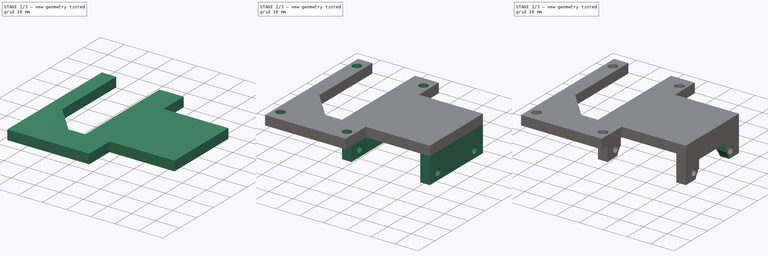
[diagram: build sequence overview — one tinted view per stage of 3, left to right]
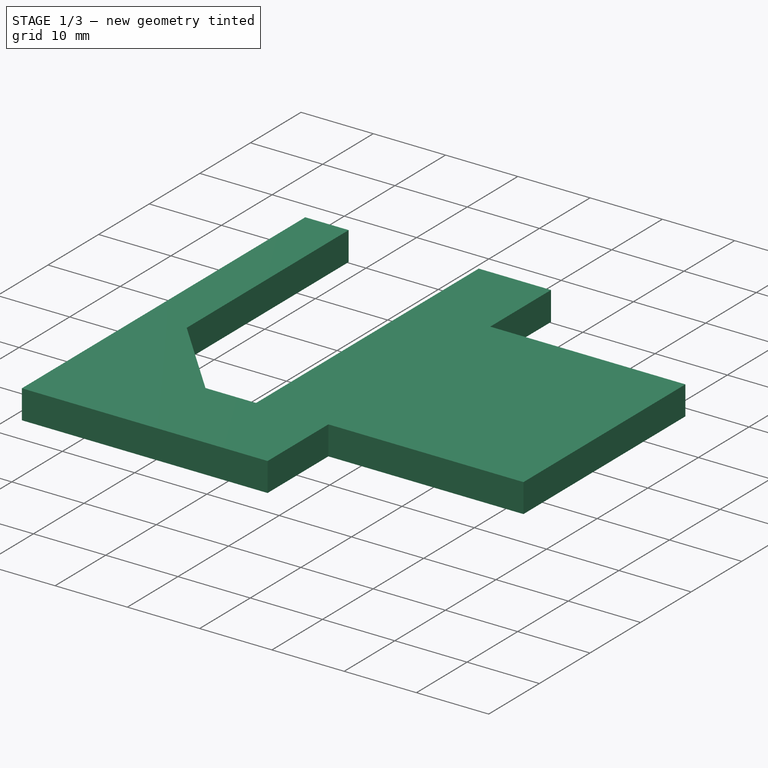
[diagram: stage 1 of 3 — iso view after this stage's code; geometry added in this stage tinted green]
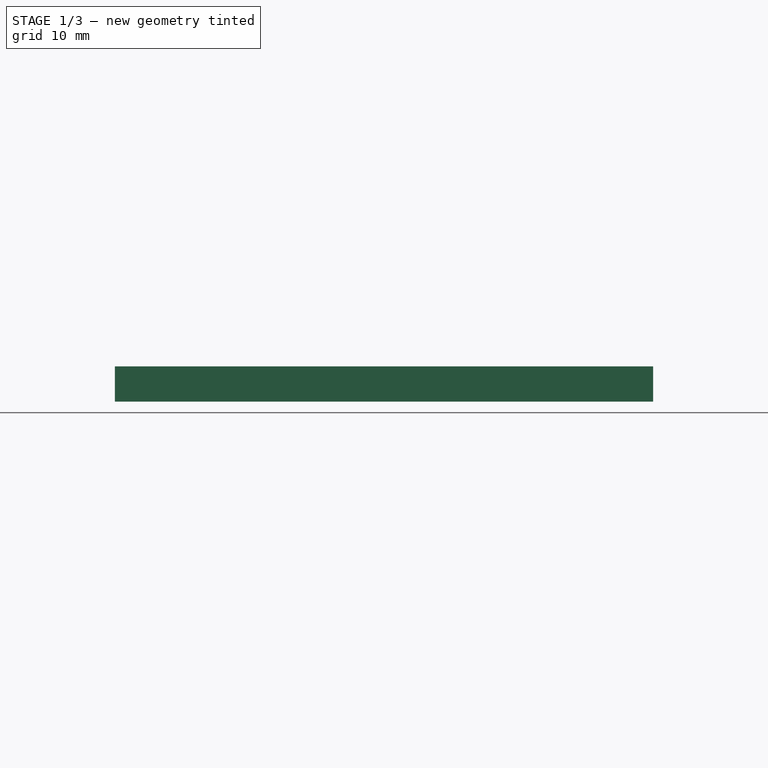
[diagram: stage 1 of 3 — front view after this stage's code; geometry added in this stage tinted green]
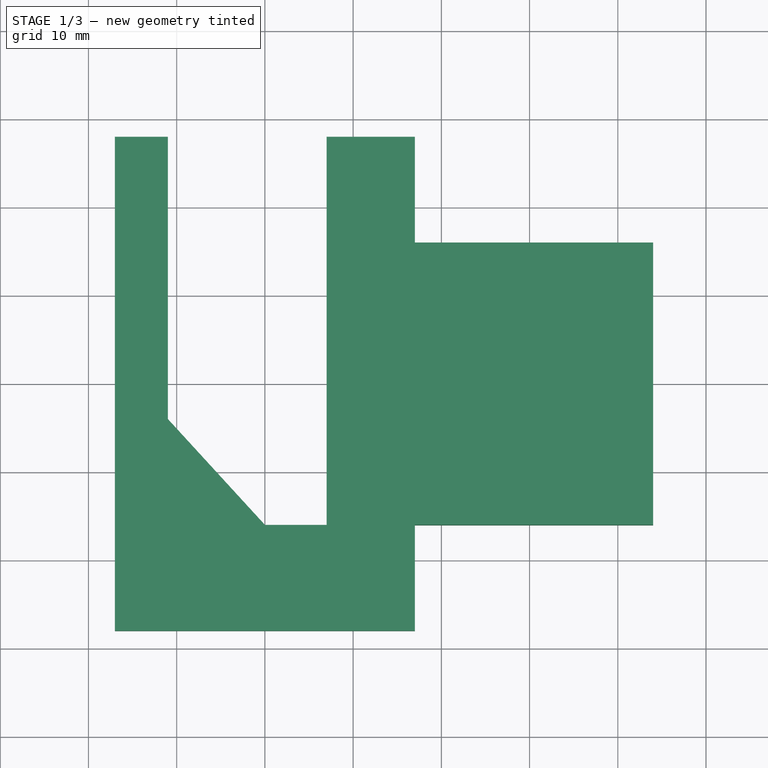
[diagram: stage 1 of 3 — top view after this stage's code; geometry added in this stage tinted green]
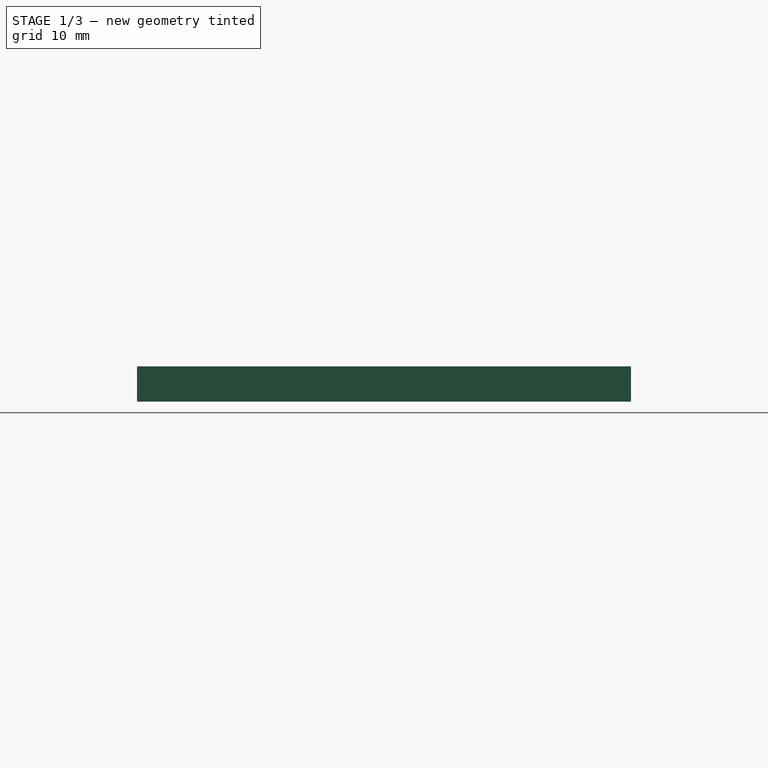
[diagram: stage 1 of 3 — right view after this stage's code; geometry added in this stage tinted green]
FCSTD DOCUMENT  (FreeCAD 0.21R33694 (Git))
Label: _mod_XL-430holderThighFront
License: All rights reserved
LicenseURL: http://en.wikipedia.org/wiki/All_rights_reserved
objects: Sketcher::SketchObject×6, PartDesign::Pocket×4, PartDesign::Pad×2, PartDesign::Chamfer×1, PartDesign::Body×1
note: 21 computed .brp shape members not serialized (recipe doc carries the construction recipe); baked Part::Feature solids carry a one-line shape summary decoded from their .brp

FEATURE [Sketcher::SketchObject] Sketch
  FullyConstrained = true
  MapMode = 5
  Support = -> [XY_Plane]
  sketch-geometry (8):
    g0: LineSegment StartX=-17 StartY=28 StartZ=0 EndX=17 EndY=28 EndZ=0
    g1: LineSegment StartX=17 StartY=28 StartZ=0 EndX=17 EndY=16 EndZ=0
    g2: LineSegment StartX=17 StartY=-28 StartZ=0 EndX=-17 EndY=-28 EndZ=0
    g3: LineSegment StartX=-17 StartY=-28 StartZ=0 EndX=-17 EndY=28 EndZ=0
    g4: LineSegment StartX=17 StartY=16 StartZ=0 EndX=44 EndY=16 EndZ=0
    g5: LineSegment StartX=44 StartY=16 StartZ=0 EndX=44 EndY=-16 EndZ=0
    g6: LineSegment StartX=44 StartY=-16 StartZ=0 EndX=17 EndY=-16 EndZ=0
    g7: LineSegment StartX=17 StartY=-16 StartZ=0 EndX=17 EndY=-28 EndZ=0
  constraints (24):
    c: Coincident(g0,g1)
    c: Coincident(g7,g2)
    c: Coincident(g2,g3)
    c: Coincident(g3,g0)
    c: Horizontal(g0)
    c: Horizontal(g2)
    c: Vertical(g1)
    c: Vertical(g3)
    c: DistanceY(g-1,g0) = 28
    c: DistanceY(g2,g-1) = 28
    c: DistanceX(g0,g-1) = 17
    c: DistanceX(g-1,g0) = 17
    c: Horizontal(g4)
    c: Coincident(g5,g4)
    c: Vertical(g5)
    c: Coincident(g6,g5)
    c: Horizontal(g6)
    c: DistanceY(g-1,g4) = 16
    c: DistanceY(g6,g-1) = 16
    c: DistanceX(g4,g4) = 27
    c: Coincident(g1,g4)
    c: Coincident(g7,g6)
    c: DistanceX(g6,g1) = 0
    c: DistanceX(g2,g1) = 0
FEATURE [PartDesign::Pad] Pad
  Direction = (0,0,1)
  Length = 4
  Length2 = 10
  Profile = -> Sketch
  ReferenceAxis = -> Sketch [N_Axis]
  Type = 0
FEATURE [Sketcher::SketchObject] Sketch003
  FullyConstrained = true
  MapMode = 5
  Placement = pos=(0,0,4) rot=(0,0,1;0rad)
  sketch-geometry (5):
    g0: LineSegment StartX=-11 StartY=28 StartZ=0 EndX=-11 EndY=-4 EndZ=0
    g1: LineSegment StartX=-11 StartY=-4 StartZ=0 EndX=-7e-16 EndY=-16 EndZ=0
    g2: LineSegment StartX=-7e-16 StartY=-16 StartZ=0 EndX=7 EndY=-16 EndZ=0
    g3: LineSegment StartX=7 StartY=-16 StartZ=0 EndX=7 EndY=28 EndZ=0
    g4: LineSegment StartX=-11 StartY=28 StartZ=0 EndX=7 EndY=28 EndZ=0
  constraints (15):
    c: Vertical(g0)
    c: Coincident(g1,g0)
    c: PointOnObject(g1,g-2)
    c: Coincident(g2,g1)
    c: Horizontal(g2)
    c: Coincident(g3,g2)
    c: Vertical(g3)
    c: Coincident(g4,g0)
    c: Coincident(g4,g3)
    c: Horizontal(g4)
    c: DistanceX(g0,g-1) = 11
    c: DistanceX(g-1,g3) = 7
    c: DistanceY(g-1,g0) = 28
    c: DistanceY(g1,g-1) = 16
    c: DistanceY(g0,g-1) = 4
FEATURE [PartDesign::Pocket] Pocket
  BaseFeature = -> Pad
  Direction = (0,0,-1)
  Length = 5
  Length2 = 5
  Profile = -> Sketch003
  ReferenceAxis = -> Sketch003 [N_Axis]
  Type = 0
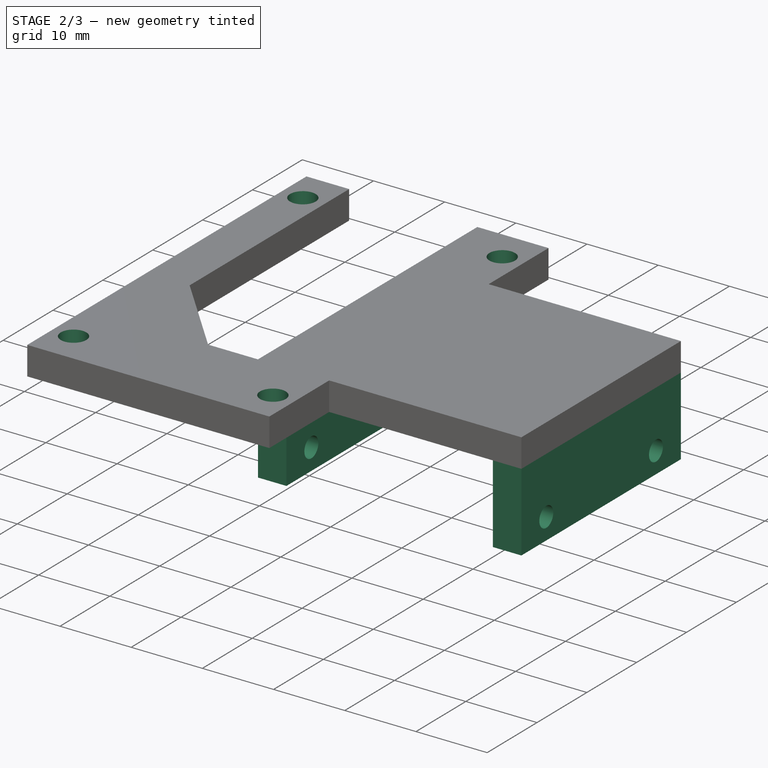
[diagram: stage 2 of 3 — iso view after this stage's code; geometry added in this stage tinted green]
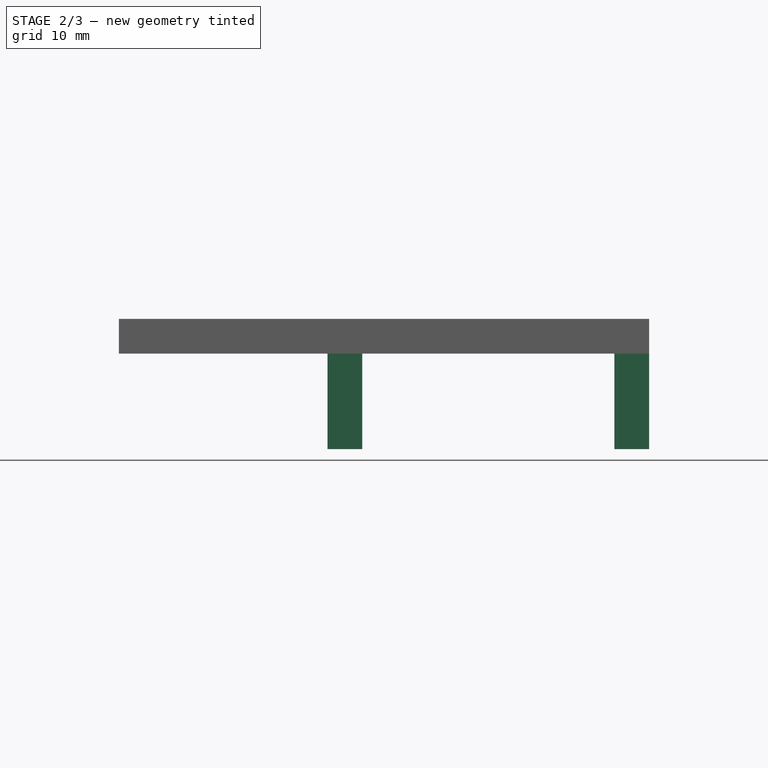
[diagram: stage 2 of 3 — front view after this stage's code; geometry added in this stage tinted green]
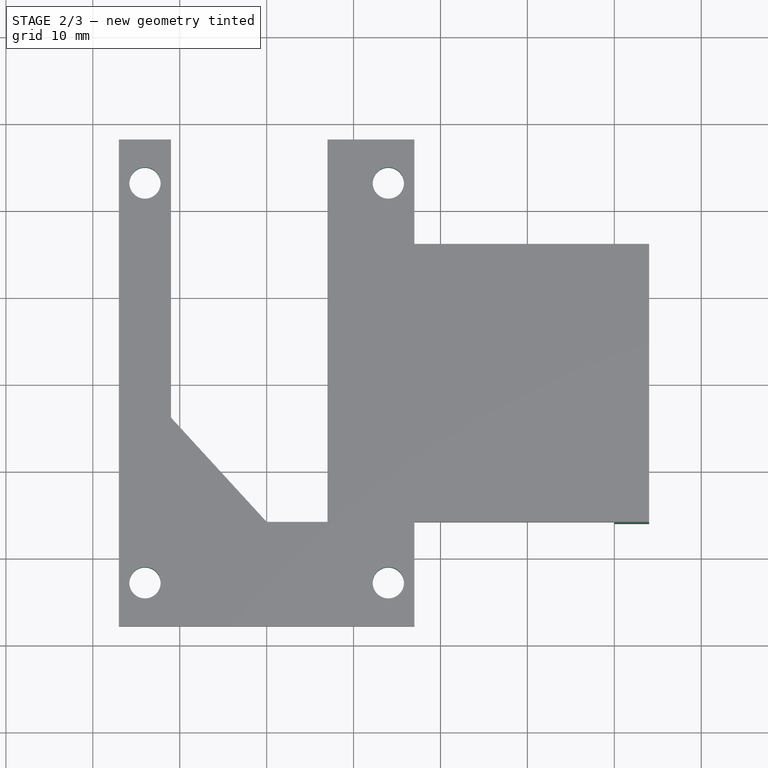
[diagram: stage 2 of 3 — top view after this stage's code; geometry added in this stage tinted green]
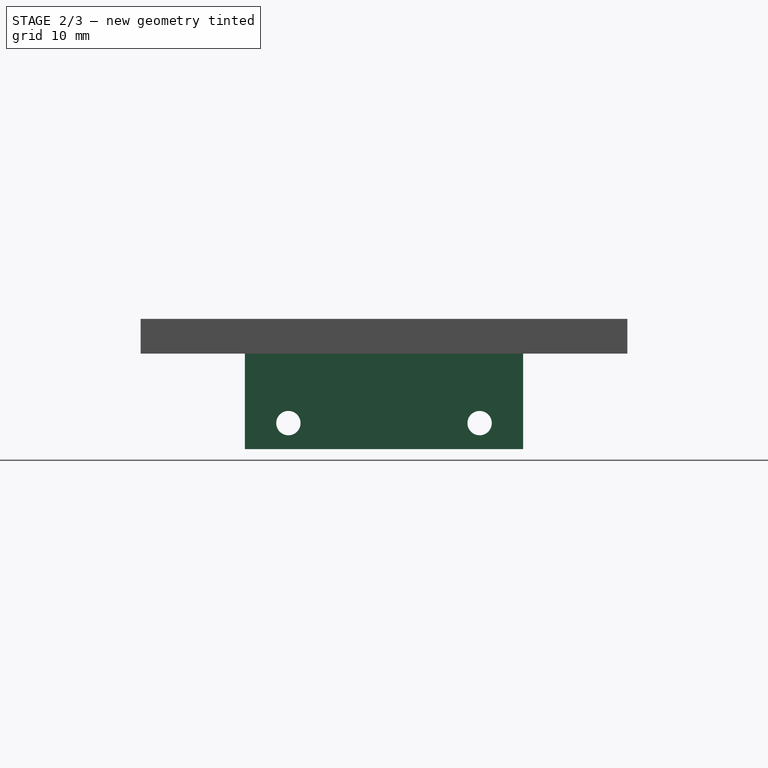
[diagram: stage 2 of 3 — right view after this stage's code; geometry added in this stage tinted green]
FEATURE [Sketcher::SketchObject] Sketch004
  FullyConstrained = true
  MapMode = 5
  Placement = pos=(0,0,0) rot=(1,0,0;3.14159rad)
  Support = -> [Pocket]
  sketch-geometry (8):
    g0: LineSegment StartX=40 StartY=16 StartZ=0 EndX=44 EndY=16 EndZ=0
    g1: LineSegment StartX=44 StartY=16 StartZ=0 EndX=44 EndY=-16 EndZ=0
    g2: LineSegment StartX=44 StartY=-16 StartZ=0 EndX=40 EndY=-16 EndZ=0
    g3: LineSegment StartX=40 StartY=-16 StartZ=0 EndX=40 EndY=16 EndZ=0
    g4: LineSegment StartX=7 StartY=16 StartZ=0 EndX=11 EndY=16 EndZ=0
    g5: LineSegment StartX=11 StartY=16 StartZ=0 EndX=11 EndY=-16 EndZ=0
    g6: LineSegment StartX=11 StartY=-16 StartZ=0 EndX=7 EndY=-16 EndZ=0
    g7: LineSegment StartX=7 StartY=-16 StartZ=0 EndX=7 EndY=16 EndZ=0
  constraints (24):
    c: Coincident(g0,g1)
    c: Coincident(g1,g2)
    c: Coincident(g2,g3)
    c: Coincident(g3,g0)
    c: Horizontal(g0)
    c: Horizontal(g2)
    c: Vertical(g1)
    c: Vertical(g3)
    c: Coincident(g4,g5)
    c: Coincident(g5,g6)
    c: Coincident(g6,g7)
    c: Coincident(g7,g4)
    c: Horizontal(g4)
    c: Horizontal(g6)
    c: Vertical(g5)
    c: Vertical(g7)
    c: DistanceY(g4,g0) = 0
    c: DistanceY(g2,g5) = 0
    c: DistanceX(g2,g1) = 4
    c: DistanceX(g6,g5) = 4
    c: DistanceY(g-1,g4) = 16
    c: DistanceY(g6,g-1) = 16
    c: DistanceX(g-1,g0) = 44
    c: DistanceX(g4,g0) = 37
FEATURE [Sketcher::SketchObject] Sketch005
  FullyConstrained = true
  MapMode = 5
  Placement = pos=(0,0,4) rot=(0,0,1;0rad)
  Support = -> [Pocket]
  sketch-geometry (4):
    g0: Circle CenterX=14 CenterY=23 CenterZ=0 NormalX=0 NormalY=0 NormalZ=1 AngleXU=0 Radius=1.8
    g1: Circle CenterX=14 CenterY=-23 CenterZ=0 NormalX=0 NormalY=0 NormalZ=1 AngleXU=0 Radius=1.8
    g2: Circle CenterX=-14 CenterY=-23 CenterZ=0 NormalX=0 NormalY=0 NormalZ=1 AngleXU=0 Radius=1.8
    g3: Circle CenterX=-14 CenterY=23 CenterZ=0 NormalX=0 NormalY=0 NormalZ=1 AngleXU=0 Radius=1.8
  constraints (12):
    c: DistanceX(g2,g3) = 0
    c: DistanceX(g0,g1) = 0
    c: DistanceY(g0,g3) = 0
    c: DistanceY(g2,g1) = 0
    c: Radius(g0) = 1.8
    c: Radius(g3) = 1.8
    c: Radius(g2) = 1.8
    c: Radius(g1) = 1.8
    c: DistanceY(g-1,g3) = 23
    c: DistanceY(g2,g-1) = 23
    c: DistanceX(g3,g-1) = 14
    c: DistanceX(g-1,g0) = 14
FEATURE [PartDesign::Pocket] Pocket001
  BaseFeature = -> Pocket
  Direction = (0,0,-1)
  Length = 5
  Length2 = 5
  Profile = -> Sketch005
  ReferenceAxis = -> Sketch005 [N_Axis]
  Type = 0
FEATURE [PartDesign::Pad] Pad001
  BaseFeature = -> Pocket001
  Direction = (0,0,-1)
  Length = 11
  Length2 = 10
  Profile = -> Sketch004
  ReferenceAxis = -> Sketch004 [N_Axis]
  Type = 0
FEATURE [Sketcher::SketchObject] Sketch006
  FullyConstrained = true
  MapMode = 5
  Placement = pos=(44,0,0) rot=(0.57735,0.57735,0.57735;2.0944rad)
  Support = -> [Pad001]
  sketch-geometry (2):
    g0: Circle CenterX=-11 CenterY=-8 CenterZ=0 NormalX=0 NormalY=0 NormalZ=1 AngleXU=0 Radius=1.4
    g1: Circle CenterX=11 CenterY=-8 CenterZ=0 NormalX=0 NormalY=0 NormalZ=1 AngleXU=0 Radius=1.4
  constraints (6):
    c: DistanceY(g1,g0) = 0
    c: Radius(g0) = 1.4
    c: Radius(g1) = 1.4
    c: DistanceY(g0,g-1) = 8
    c: DistanceX(g-1,g1) = 11
    c: DistanceX(g0,g-1) = 11
FEATURE [PartDesign::Pocket] Pocket002
  BaseFeature = -> Pad001
  Direction = (-1,0,0)
  Length = 100
  Length2 = 5
  Profile = -> Sketch006
  ReferenceAxis = -> Sketch006 [N_Axis]
  Type = 0
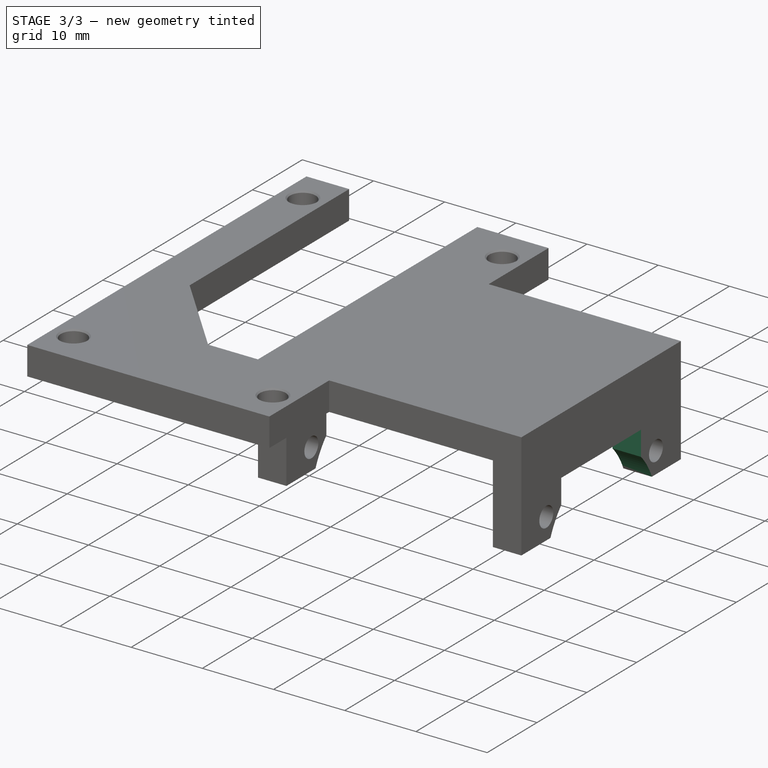
[diagram: stage 3 of 3 — iso view after this stage's code; geometry added in this stage tinted green]
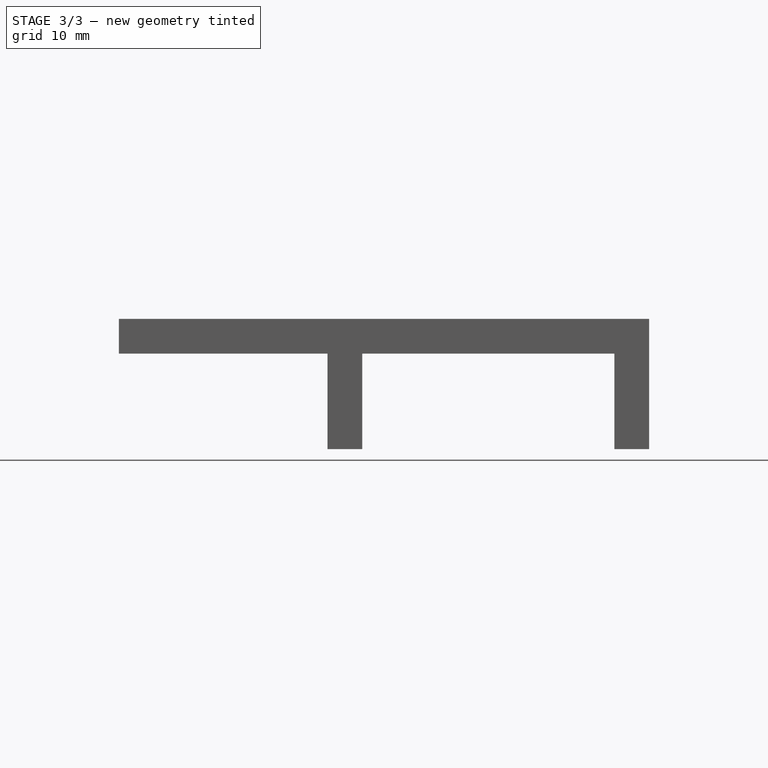
[diagram: stage 3 of 3 — front view after this stage's code; geometry added in this stage tinted green]
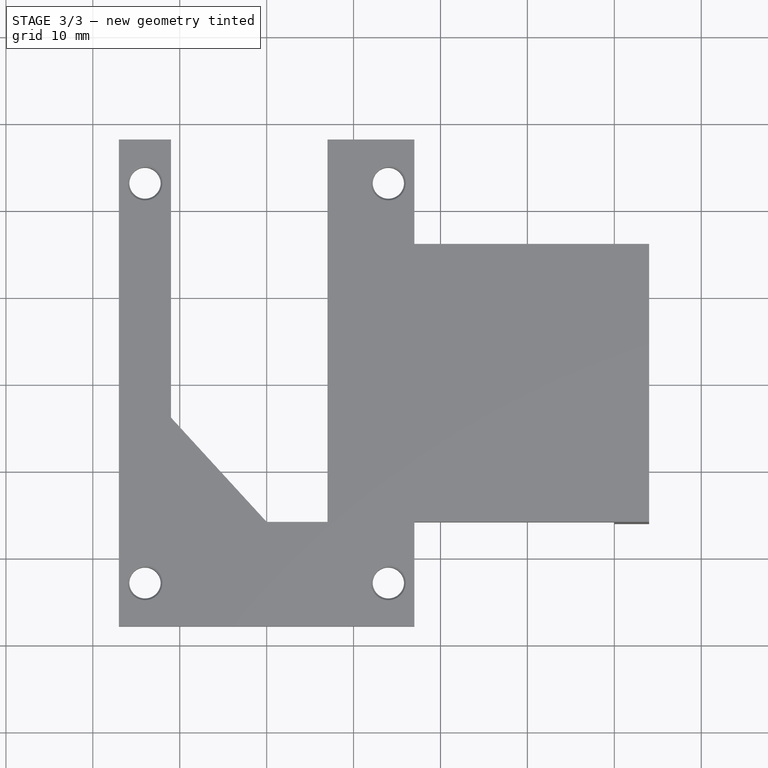
[diagram: stage 3 of 3 — top view after this stage's code; geometry added in this stage tinted green]
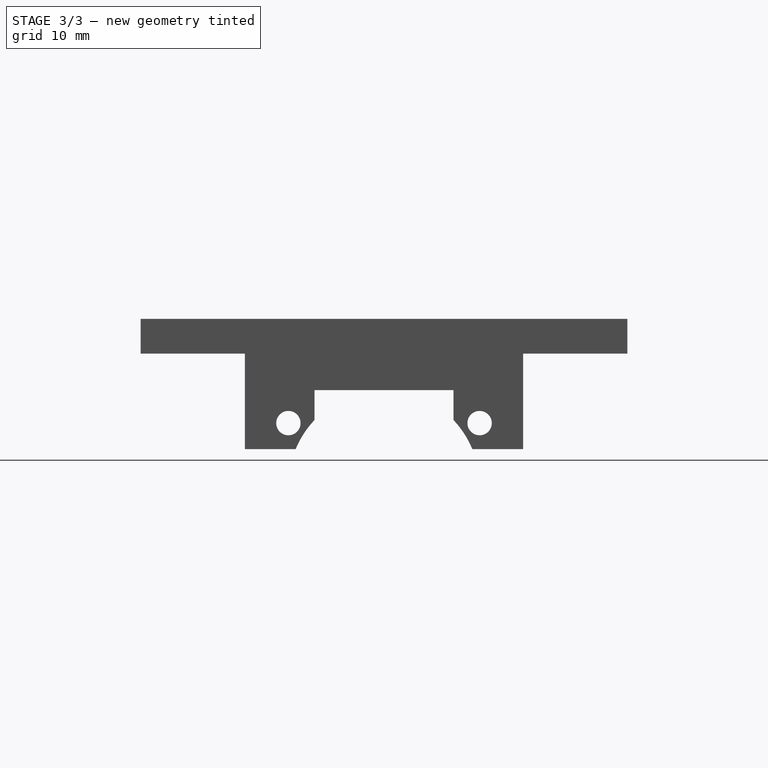
[diagram: stage 3 of 3 — right view after this stage's code; geometry added in this stage tinted green]
FEATURE [Sketcher::SketchObject] Sketch007
  FullyConstrained = true
  MapMode = 5
  Placement = pos=(44,0,0) rot=(0.57735,0.57735,0.57735;2.0944rad)
  Support = -> [Pocket002]
  sketch-geometry (6):
    g0: LineSegment StartX=8 StartY=-7.65017 StartZ=0 EndX=8 EndY=-4.2 EndZ=0
    g1: LineSegment StartX=8 StartY=-4.2 StartZ=0 EndX=-8 EndY=-4.2 EndZ=0
    g2: LineSegment StartX=-8 StartY=-4.2 StartZ=0 EndX=-8 EndY=-7.65017 EndZ=0
    g3: ArcOfCircle CenterX=0 CenterY=-15.2 CenterZ=0 NormalX=0 NormalY=0 NormalZ=1 AngleXU=0 Radius=11 StartAngle=1.5708 EndAngle=2.38514
    g4: ArcOfCircle CenterX=0 CenterY=-15.2 CenterZ=0 NormalX=0 NormalY=0 NormalZ=1 AngleXU=0 Radius=11 StartAngle=2.38514 EndAngle=7.03964
    g5: ArcOfCircle CenterX=0 CenterY=-15.2 CenterZ=0 NormalX=0 NormalY=0 NormalZ=1 AngleXU=0 Radius=11 StartAngle=0.756456 EndAngle=1.5708
  constraints (21):
    c: PointOnObject(g4,g-2)
    c: Vertical(g0)
    c: Coincident(g1,g0)
    c: Horizontal(g1)
    c: Coincident(g2,g1)
    c: Vertical(g2)
    c: Coincident(g5,g3)
    c: Coincident(g4,g3)
    c: DistanceX(g1,g-1) = 8
    c: DistanceX(g-1,g0) = 8
    c: DistanceY(g4,g0) = 11
    c: DistanceY(g4,g-1) = 15.2
    c: DistanceX(g4,g4) = 8
    c: DistanceX(g3,g4) = 8
    c: DistanceX(g5,g0) = 8
    c: Coincident(g4,g5)
    c: Coincident(g4,g5)
    c: PointOnObject(g0,g4)
    c: PointOnObject(g2,g4)
    c: Radius(g4) = 11
    c: DistanceX(g3,g4) = 8
FEATURE [PartDesign::Pocket] Pocket003
  BaseFeature = -> Pocket002
  Direction = (-1,0,0)
  Length = 100
  Length2 = 5
  Profile = -> Sketch007
  ReferenceAxis = -> Sketch007 [N_Axis]
  Type = 0
FEATURE [PartDesign::Chamfer] Chamfer001
  Angle = 45
  Base = -> Pocket003 [Edge39,Edge37,Edge38,Edge40]
  BaseFeature = -> Pocket003
  ChamferType = 0
  FlipDirection = false
  Size = 0.2
  Size2 = 1
  SupportTransform = false
  UseAllEdges = false
FEATURE [PartDesign::Body] Body
  Group = -> [Sketch,Pad,Sketch003,Pocket,Sketch004,Sketch005,Pocket001,Pad001,Sketch006,Pocket002,Sketch007,Pocket003,Chamfer001]
  Origin = -> Origin
  Tip = -> Chamfer001
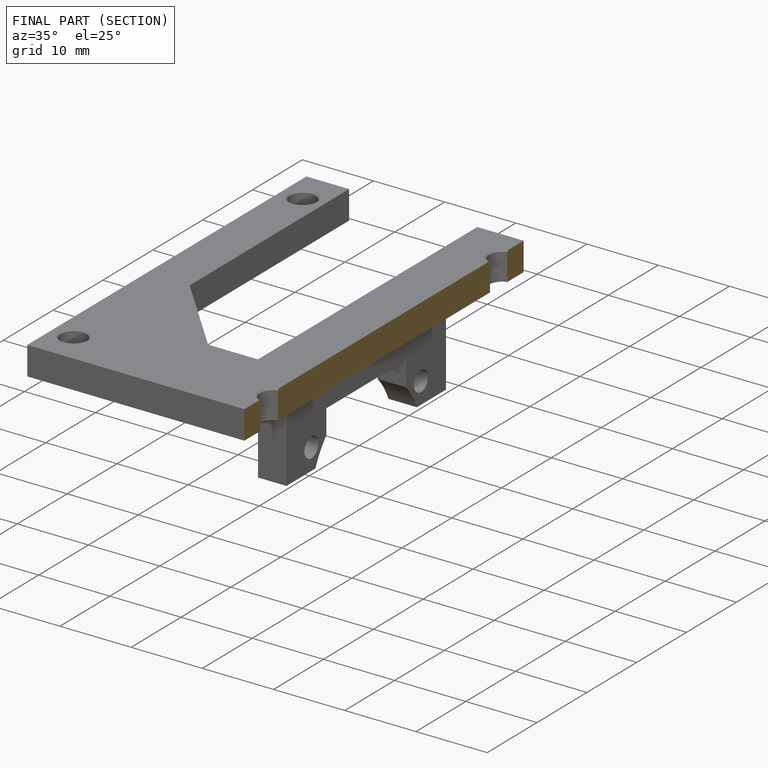
[diagram: finished part — half-section view (interior)]
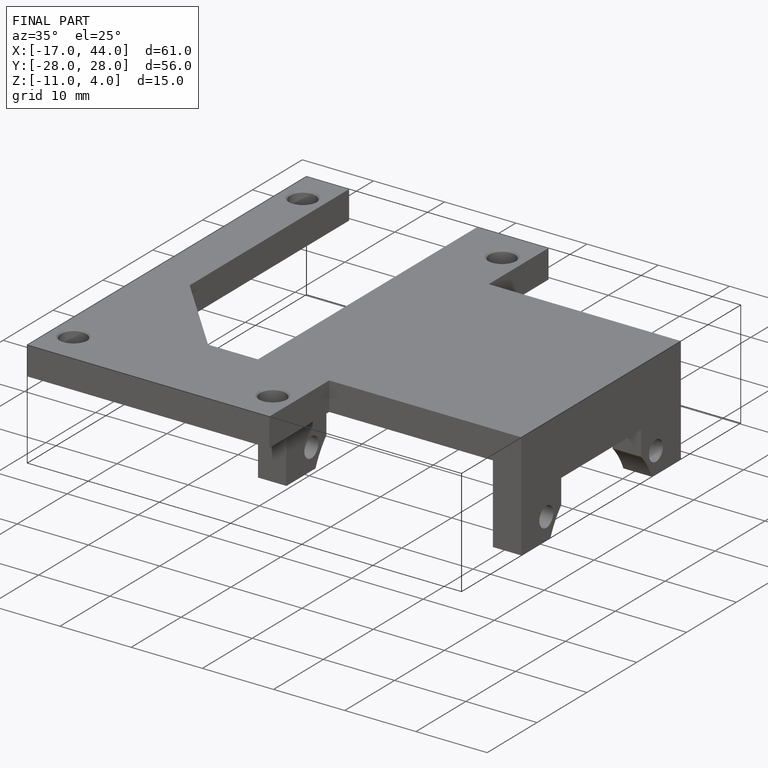
[diagram: finished part — iso view with bounding-box wireframe]
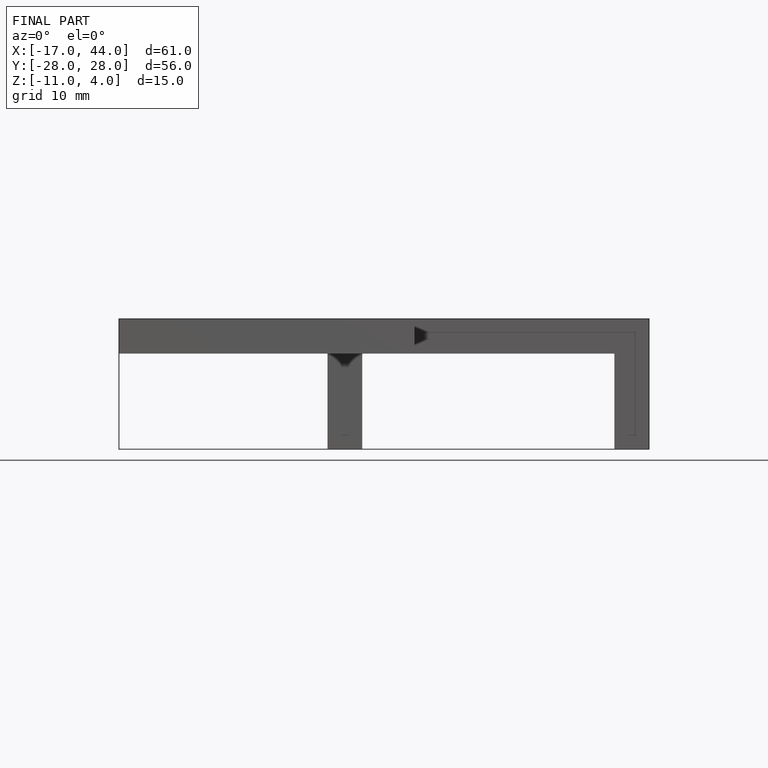
[diagram: finished part — front view with bounding-box wireframe]
